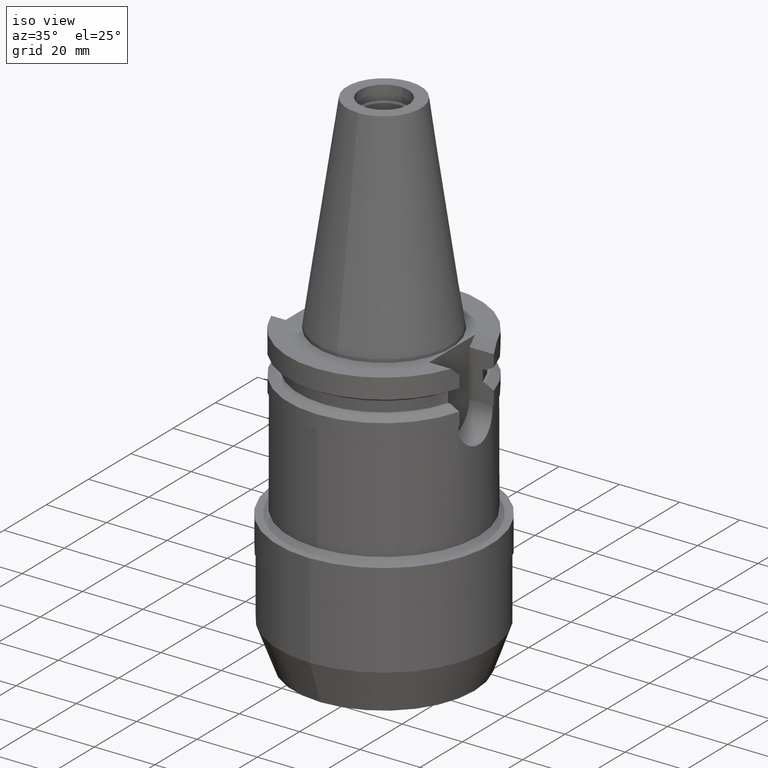
[diagram: clean part render]
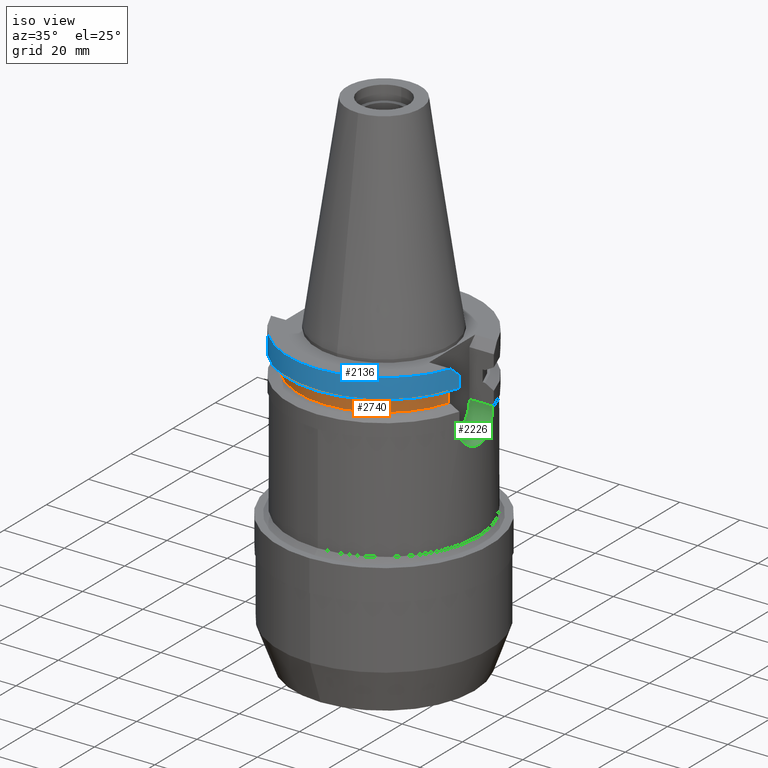
[diagram: same view with three faces highlighted in distinct colors, each labeled with its STEP entity id]
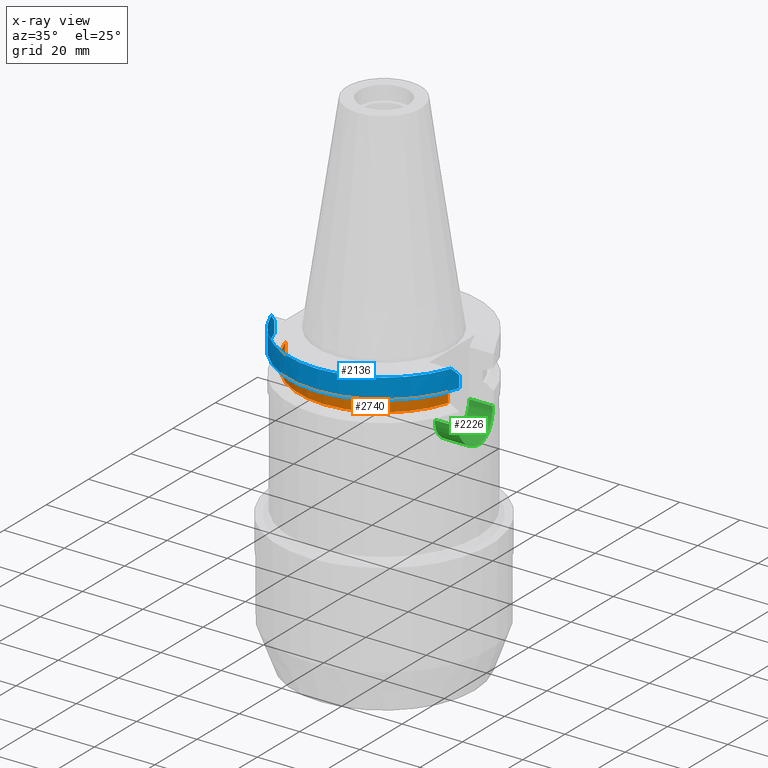
[diagram: x-ray of the same camera — body ghosted, the three highlighted faces saturated]
A machine part, iso view with three faces highlighted in distinct colors.
The next image is the same camera in x-ray (body ghosted, the three faces saturated) — at least one of them is partly hidden behind the body in this view.
Their STEP definitions:

[orange] entity #2740 — the highlighted cylindrical surface (partial cylindrical patch) has radius 28.18 mm, axis along (0, 0, 1).
#1309=CARTESIAN_POINT('',(0.E0,0.E0,-1.30475E1));
#1310=DIRECTION('',(0.E0,0.E0,1.E0));
#1311=DIRECTION('',(-9.568350128908E-1,-2.906316536551E-1,0.E0));
#1312=AXIS2_PLACEMENT_3D('',#1309,#1310,#1311);
#1317=CARTESIAN_POINT('',(0.E0,0.E0,-1.30475E1));
#1318=DIRECTION('',(0.E0,0.E0,1.E0));
#1319=DIRECTION('',(0.E0,-1.E0,0.E0));
#1320=AXIS2_PLACEMENT_3D('',#1317,#1318,#1319);
#1325=DIRECTION('',(0.E0,0.E0,-1.E0));
#1326=VECTOR('',#1325,3.84E0);
#1327=CARTESIAN_POINT('',(2.696361066326E1,-8.19E0,-9.2075E0));
#1328=LINE('',#1327,#1326);
#1332=DIRECTION('',(0.E0,0.E0,1.E0));
#1333=VECTOR('',#1332,3.84E0);
#1334=CARTESIAN_POINT('',(-2.696361066326E1,-8.19E0,-1.30475E1));
#1335=LINE('',#1334,#1333);
#1339=CARTESIAN_POINT('',(0.E0,0.E0,-9.2075E0));
#1340=DIRECTION('',(0.E0,0.E0,-1.E0));
#1341=DIRECTION('',(9.568350128908E-1,-2.906316536551E-1,0.E0));
#1342=AXIS2_PLACEMENT_3D('',#1339,#1340,#1341);
#1347=CARTESIAN_POINT('',(0.E0,0.E0,-9.2075E0));
#1348=DIRECTION('',(0.E0,0.E0,-1.E0));
#1349=DIRECTION('',(0.E0,-1.E0,0.E0));
#1350=AXIS2_PLACEMENT_3D('',#1347,#1348,#1349);
#1518=CARTESIAN_POINT('',(2.696361066326E1,-8.19E0,-1.30475E1));
#1519=VERTEX_POINT('',#1518);
#1520=CARTESIAN_POINT('',(2.696361066326E1,-8.19E0,-9.2075E0));
#1521=VERTEX_POINT('',#1520);
#1566=CARTESIAN_POINT('',(-6.305166448056E-14,-2.818E1,-9.2075E0));
#1567=CARTESIAN_POINT('',(-2.696361066326E1,-8.19E0,-9.2075E0));
#1568=VERTEX_POINT('',#1566);
#1569=VERTEX_POINT('',#1567);
#1574=CARTESIAN_POINT('',(4.351173924716E-14,-2.818E1,-1.30475E1));
#1575=VERTEX_POINT('',#1574);
#1576=CARTESIAN_POINT('',(-2.696361066326E1,-8.19E0,-1.30475E1));
#1577=VERTEX_POINT('',#1576);
#2725=CARTESIAN_POINT('',(0.E0,0.E0,-1.121925E2));
#2726=DIRECTION('',(0.E0,0.E0,1.E0));
#2727=DIRECTION('',(0.E0,1.E0,0.E0));
#2728=AXIS2_PLACEMENT_3D('',#2725,#2726,#2727);
#2729=CYLINDRICAL_SURFACE('',#2728,2.818E1);
#2730=ORIENTED_EDGE('',*,*,#2163,.T.);
#2731=ORIENTED_EDGE('',*,*,#2720,.F.);
#2732=ORIENTED_EDGE('',*,*,#2718,.F.);
#2733=ORIENTED_EDGE('',*,*,#2053,.T.);
#2735=ORIENTED_EDGE('',*,*,#2734,.F.);
#2737=ORIENTED_EDGE('',*,*,#2736,.F.);
#2738=EDGE_LOOP('',(#2730,#2731,#2732,#2733,#2735,#2737));
#2739=FACE_OUTER_BOUND('',#2738,.F.);
#1313=CIRCLE('',#1312,2.818E1);
#1321=CIRCLE('',#1320,2.818E1);
#1343=CIRCLE('',#1342,2.818E1);
#1351=CIRCLE('',#1350,2.818E1);
#2053=EDGE_CURVE('',#1577,#1569,#1335,.T.);
#2163=EDGE_CURVE('',#1521,#1519,#1328,.T.);
#2718=EDGE_CURVE('',#1577,#1575,#1313,.T.);
#2720=EDGE_CURVE('',#1575,#1519,#1321,.T.);
#2734=EDGE_CURVE('',#1568,#1569,#1351,.T.);
#2736=EDGE_CURVE('',#1521,#1568,#1343,.T.);
#2740=ADVANCED_FACE('',(#2739),#2729,.T.);

[blue] entity #2136 — the highlighted cylindrical surface (partial cylindrical patch) has radius 31.75 mm, axis along (0, 0, 1).
#76=CARTESIAN_POINT('',(0.E0,0.E0,-9.999999999999E-1));
#77=DIRECTION('',(0.E0,0.E0,-1.E0));
#78=DIRECTION('',(9.393382785306E-1,-3.429921259843E-1,0.E0));
#79=AXIS2_PLACEMENT_3D('',#76,#77,#78);
#84=CARTESIAN_POINT('',(0.E0,0.E0,-9.999999999999E-1));
#85=DIRECTION('',(0.E0,0.E0,-1.E0));
#86=DIRECTION('',(0.E0,-1.E0,0.E0));
#87=AXIS2_PLACEMENT_3D('',#84,#85,#86);
#596=CARTESIAN_POINT('',(-2.982399034335E1,-1.089E1,-1.000000000001E0));
#597=CARTESIAN_POINT('',(-3.015017741992E1,-9.996685011754E0,
-1.893314988246E0));
#598=CARTESIAN_POINT('',(-3.043345108244E1,-9.096596073173E0,
-2.793403926827E0));
#599=CARTESIAN_POINT('',(-3.067550162589E1,-8.19E0,-3.7E0));
#618=DIRECTION('',(8.602696616537E-9,3.222093336372E-8,-1.E0));
#619=VECTOR('',#618,3.901334354233E0);
#620=CARTESIAN_POINT('',(3.067550162589E1,-8.19E0,-3.7E0));
#621=LINE('',#620,#619);
#625=DIRECTION('',(-4.149813642988E-8,1.554308320707E-7,1.E0));
#626=VECTOR('',#625,3.901327812139E0);
#627=CARTESIAN_POINT('',(-3.067550146399E1,-8.190000606387E0,
-7.601327812139E0));
#628=LINE('',#627,#626);
#632=CARTESIAN_POINT('',(3.067550162589E1,-8.19E0,-3.7E0));
#633=CARTESIAN_POINT('',(3.043345108244E1,-9.096596073173E0,-2.793403926827E0));
#634=CARTESIAN_POINT('',(3.015017741992E1,-9.996685011754E0,-1.893314988246E0));
#635=CARTESIAN_POINT('',(2.982399034335E1,-1.089E1,-1.000000000001E0));
#1398=CARTESIAN_POINT('',(0.E0,0.E0,-7.601333230926E0));
#1399=DIRECTION('',(0.E0,0.E0,1.E0));
#1400=DIRECTION('',(-9.661575315241E-1,-2.579527559055E-1,0.E0));
#1401=AXIS2_PLACEMENT_3D('',#1398,#1399,#1400);
#1406=CARTESIAN_POINT('',(0.E0,0.E0,-7.601333230926E0));
#1407=DIRECTION('',(0.E0,0.E0,1.E0));
#1408=DIRECTION('',(0.E0,-1.E0,0.E0));
#1409=AXIS2_PLACEMENT_3D('',#1406,#1407,#1408);
#1468=CARTESIAN_POINT('',(2.982399034335E1,-1.089E1,-1.E0));
#1469=VERTEX_POINT('',#1468);
#1470=CARTESIAN_POINT('',(0.E0,-3.175E1,-9.999999999999E-1));
#1471=CARTESIAN_POINT('',(-2.982399034335E1,-1.089E1,-9.999999999999E-1));
#1472=VERTEX_POINT('',#1470);
#1473=VERTEX_POINT('',#1471);
#1495=VERTEX_POINT('',#632);
#1496=CARTESIAN_POINT('',(3.067550165945E1,-8.189999874295E0,
-7.601334354233E0));
#1497=VERTEX_POINT('',#1496);
#1498=CARTESIAN_POINT('',(0.E0,-3.175E1,-7.601333230926E0));
#1499=VERTEX_POINT('',#1498);
#1500=CARTESIAN_POINT('',(-3.067550162589E1,-8.19E0,-7.601333230926E0));
#1501=VERTEX_POINT('',#1500);
#1502=CARTESIAN_POINT('',(-3.067550162589E1,-8.19E0,-3.7E0));
#1503=VERTEX_POINT('',#1502);
#2117=CARTESIAN_POINT('',(0.E0,0.E0,-1.121925E2));
#2118=DIRECTION('',(0.E0,0.E0,1.E0));
#2119=DIRECTION('',(0.E0,1.E0,0.E0));
#2120=AXIS2_PLACEMENT_3D('',#2117,#2118,#2119);
#2121=CYLINDRICAL_SURFACE('',#2120,3.175E1);
#2123=ORIENTED_EDGE('',*,*,#2122,.F.);
#2125=ORIENTED_EDGE('',*,*,#2124,.T.);
#2127=ORIENTED_EDGE('',*,*,#2126,.F.);
#2129=ORIENTED_EDGE('',*,*,#2128,.F.);
#2130=ORIENTED_EDGE('',*,*,#2047,.T.);
#2131=ORIENTED_EDGE('',*,*,#2109,.F.);
#2132=ORIENTED_EDGE('',*,*,#1764,.F.);
#2133=ORIENTED_EDGE('',*,*,#1762,.F.);
#2134=EDGE_LOOP('',(#2123,#2125,#2127,#2129,#2130,#2131,#2132,#2133));
#2135=FACE_OUTER_BOUND('',#2134,.F.);
#80=CIRCLE('',#79,3.175E1);
#88=CIRCLE('',#87,3.175E1);
#600=B_SPLINE_CURVE_WITH_KNOTS('',3,(#596,#597,#598,#599),.UNSPECIFIED.,.F.,.F.,
(4,4),(0.E0,1.E0),.UNSPECIFIED.);
#636=B_SPLINE_CURVE_WITH_KNOTS('',3,(#632,#633,#634,#635),.UNSPECIFIED.,.F.,.F.,
(4,4),(0.E0,1.E0),.UNSPECIFIED.);
#1402=CIRCLE('',#1401,3.175E1);
#1410=CIRCLE('',#1409,3.175E1);
#1762=EDGE_CURVE('',#1469,#1472,#80,.T.);
#1764=EDGE_CURVE('',#1472,#1473,#88,.T.);
#2047=EDGE_CURVE('',#1501,#1503,#628,.T.);
#2109=EDGE_CURVE('',#1473,#1503,#600,.T.);
#2122=EDGE_CURVE('',#1495,#1469,#636,.T.);
#2124=EDGE_CURVE('',#1495,#1497,#621,.T.);
#2126=EDGE_CURVE('',#1499,#1497,#1410,.T.);
#2128=EDGE_CURVE('',#1501,#1499,#1402,.T.);
#2136=ADVANCED_FACE('',(#2135),#2121,.T.);

[green] entity #2226 — the highlighted cylindrical surface (edge-blend (fillet) strip) has radius 8.19 mm, axis along (1, 0, 0).
#145=CARTESIAN_POINT('',(2.257E1,0.E0,-1.931E1));
#146=DIRECTION('',(-1.E0,0.E0,0.E0));
#147=DIRECTION('',(0.E0,1.E0,0.E0));
#148=AXIS2_PLACEMENT_3D('',#145,#146,#147);
#153=CARTESIAN_POINT('',(2.257E1,0.E0,-1.931E1));
#154=DIRECTION('',(-1.E0,0.E0,0.E0));
#155=DIRECTION('',(0.E0,0.E0,-1.E0));
#156=AXIS2_PLACEMENT_3D('',#153,#154,#155);
#717=CARTESIAN_POINT('',(3.031309782916E1,-8.19E0,-1.931E1));
#718=CARTESIAN_POINT('',(3.031309782916E1,-8.19E0,-1.991376615424E1));
#719=CARTESIAN_POINT('',(3.034869612160E1,-8.059705010727E0,-2.109800081354E1));
#720=CARTESIAN_POINT('',(3.050284205967E1,-7.467454423246E0,-2.284414265828E1));
#721=CARTESIAN_POINT('',(3.073324541133E1,-6.470926808414E0,-2.444103030515E1));
#722=CARTESIAN_POINT('',(3.097915738874E1,-5.193289930893E0,-2.573229791901E1));
#723=CARTESIAN_POINT('',(3.120927934683E1,-3.593143531982E0,-2.674945955617E1));
#724=CARTESIAN_POINT('',(3.136286093498E1,-1.847476513579E0,-2.735891359807E1));
#725=CARTESIAN_POINT('',(3.141816237223E1,-1.207863039594E-2,
-2.756900496177E1));
#726=CARTESIAN_POINT('',(3.136446938010E1,1.808556593472E0,-2.736500551444E1));
#727=CARTESIAN_POINT('',(3.121797965666E1,3.510969687381E0,-2.678448454229E1));
#728=CARTESIAN_POINT('',(3.099493377539E1,5.099704015791E0,-2.580644174759E1));
#729=CARTESIAN_POINT('',(3.074654482614E1,6.410048147761E0,-2.452073933771E1));
#730=CARTESIAN_POINT('',(3.050882247784E1,7.444179627774E0,-2.290142240776E1));
#731=CARTESIAN_POINT('',(3.034884587192E1,8.059293273522E0,-2.111171588301E1));
#732=CARTESIAN_POINT('',(3.031309782916E1,8.19E0,-1.991705601563E1));
#733=CARTESIAN_POINT('',(3.031309782916E1,8.19E0,-1.931E1));
#752=DIRECTION('',(-1.E0,-3.945880358456E-14,0.E0));
#753=VECTOR('',#752,7.743097829159E0);
#754=CARTESIAN_POINT('',(3.031309782916E1,-8.19E0,-1.931E1));
#755=LINE('',#754,#753);
#759=DIRECTION('',(1.E0,-3.991762688206E-14,0.E0));
#760=VECTOR('',#759,7.743097829159E0);
#761=CARTESIAN_POINT('',(2.257E1,8.19E0,-1.931E1));
#762=LINE('',#761,#760);
#1486=CARTESIAN_POINT('',(2.257E1,8.19E0,-1.931E1));
#1487=VERTEX_POINT('',#1486);
#1488=CARTESIAN_POINT('',(2.257E1,0.E0,-2.75E1));
#1489=CARTESIAN_POINT('',(2.257E1,-8.19E0,-1.931E1));
#1490=VERTEX_POINT('',#1488);
#1491=VERTEX_POINT('',#1489);
#1524=CARTESIAN_POINT('',(3.031309782916E1,-8.19E0,-1.931E1));
#1525=VERTEX_POINT('',#1524);
#1546=VERTEX_POINT('',#733);
#2214=CARTESIAN_POINT('',(2.257E1,0.E0,-1.931E1));
#2215=DIRECTION('',(1.E0,0.E0,0.E0));
#2216=DIRECTION('',(0.E0,0.E0,-1.E0));
#2217=AXIS2_PLACEMENT_3D('',#2214,#2215,#2216);
#2218=CYLINDRICAL_SURFACE('',#2217,8.19E0);
#2219=ORIENTED_EDGE('',*,*,#2202,.F.);
#2220=ORIENTED_EDGE('',*,*,#2172,.T.);
#2221=ORIENTED_EDGE('',*,*,#1797,.F.);
#2222=ORIENTED_EDGE('',*,*,#1795,.F.);
#2223=ORIENTED_EDGE('',*,*,#1850,.T.);
#2224=EDGE_LOOP('',(#2219,#2220,#2221,#2222,#2223));
#2225=FACE_OUTER_BOUND('',#2224,.F.);
#149=CIRCLE('',#148,8.19E0);
#157=CIRCLE('',#156,8.19E0);
#734=B_SPLINE_CURVE_WITH_KNOTS('',3,(#717,#718,#719,#720,#721,#722,#723,#724,
#725,#726,#727,#728,#729,#730,#731,#732,#733),.UNSPECIFIED.,.F.,.F.,(4,1,1,1,1,
1,1,1,1,1,1,1,1,1,4),(0.E0,7.142857142857E-2,1.428571428571E-1,
2.142857142857E-1,2.857142857143E-1,3.571428571429E-1,4.285714285714E-1,5.E-1,
5.714285714286E-1,6.428571428571E-1,7.142857142857E-1,7.857142857143E-1,
8.571428571429E-1,9.285714285714E-1,1.E0),.UNSPECIFIED.);
#1795=EDGE_CURVE('',#1487,#1490,#149,.T.);
#1797=EDGE_CURVE('',#1490,#1491,#157,.T.);
#1850=EDGE_CURVE('',#1487,#1546,#762,.T.);
#2172=EDGE_CURVE('',#1525,#1491,#755,.T.);
#2202=EDGE_CURVE('',#1525,#1546,#734,.T.);
#2226=ADVANCED_FACE('',(#2225),#2218,.F.);